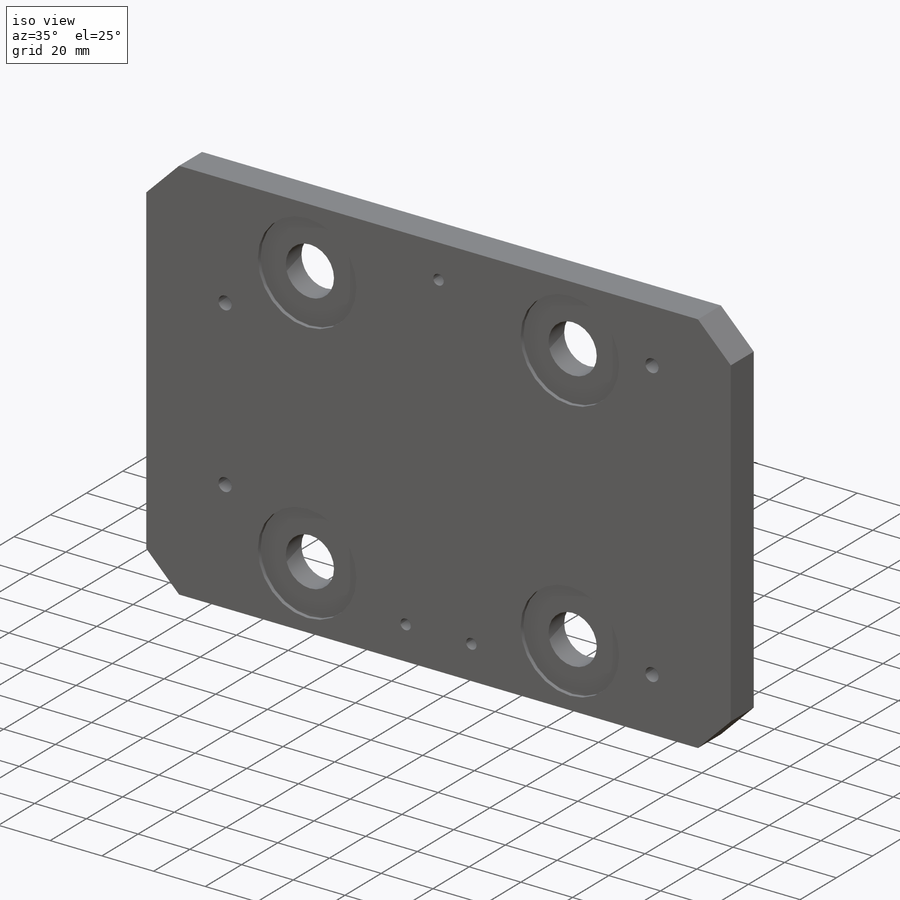
[diagram: iso view]
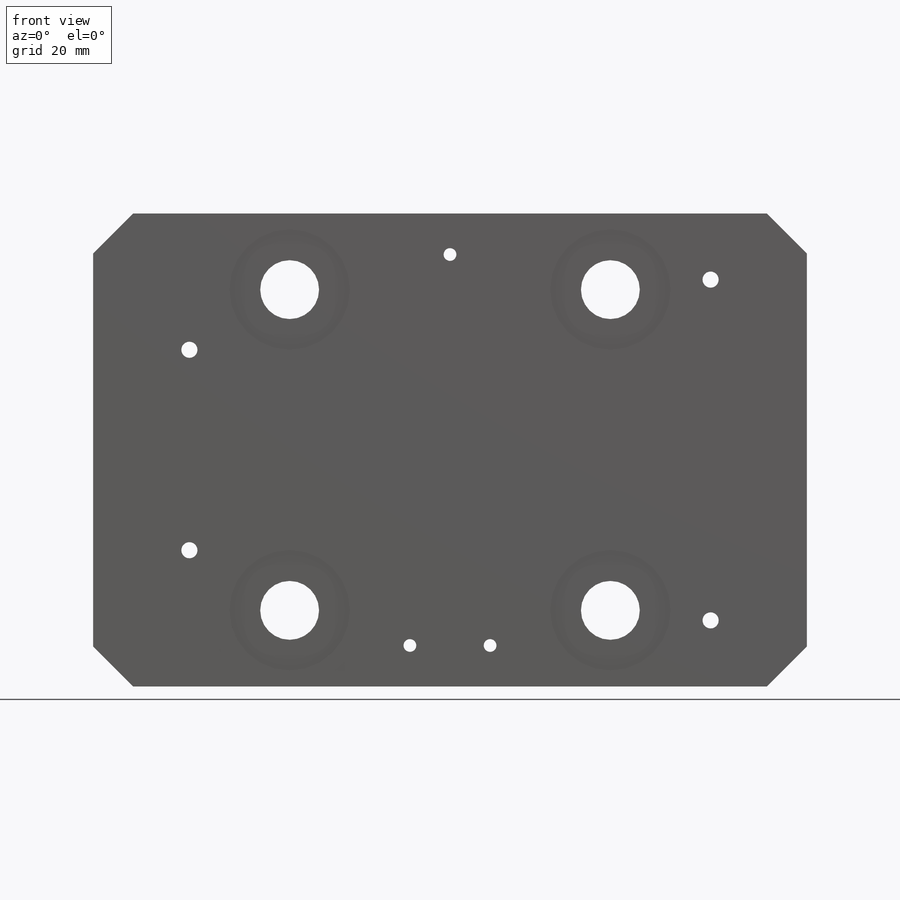
[diagram: front view]
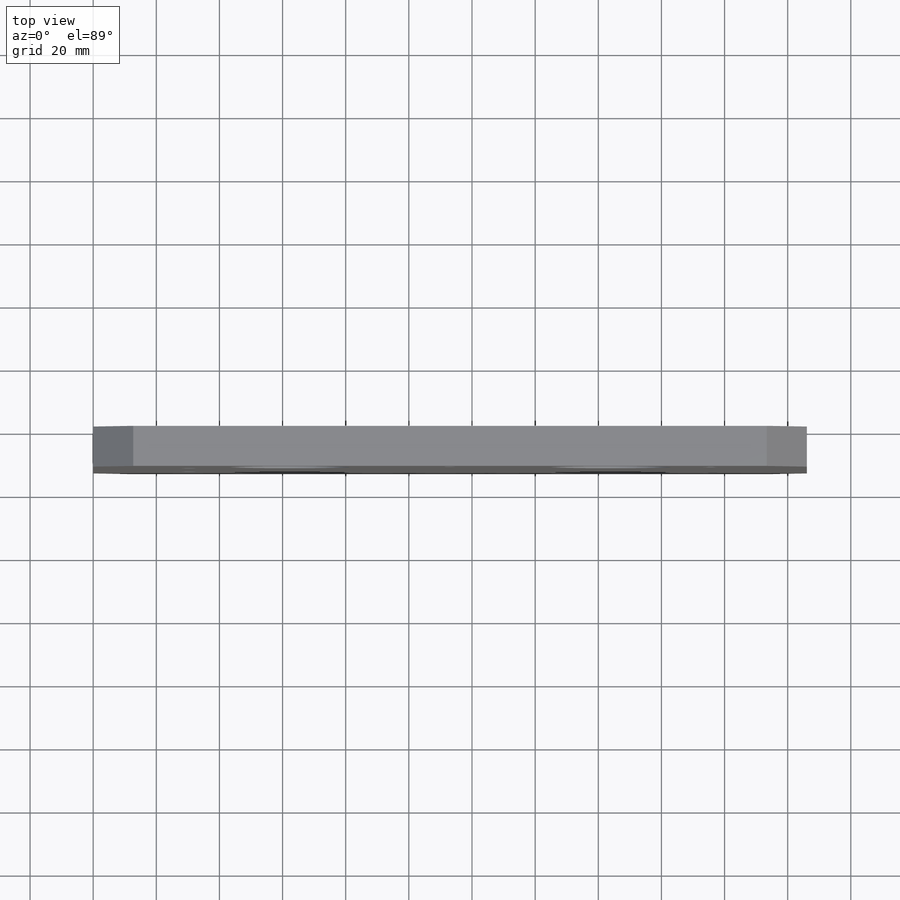
[diagram: top view]
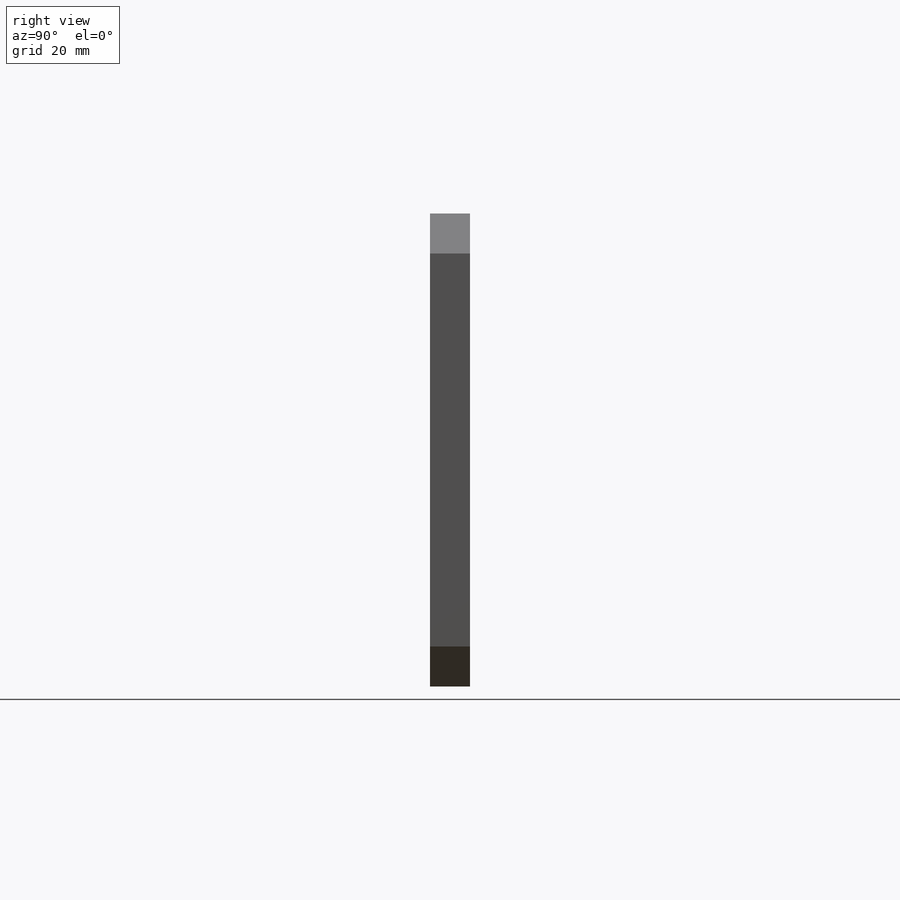
[diagram: right view]
SOLIDWORKS PART (.sldprt)
format: sldprt  version: not decoded by parser v0  size: 401,920 bytes
history: native  units: mm
features: sketch x9, thread x7, hole x3, material x1, plane x1, extrude x1, chamfer x1, cut_extrude x1 (+14 scaffold rows collapsed)
feature tree (38):
  scaffold x14  (default folders/planes/origin — collapsed)
  material  "AISI 304"
  plane  "Plane1"  Offset=16.51mm ID=-1
  sketch  "Sketch3"  dims[D1=226.06mm D2=149.86mm]
  extrude  "Extrude2"  Depth=12.7mm
  sketch  "Sketch20"  dims[D1=38.1mm D2=101.6mm D3=101.6mm]
  hole  "1/4-20 Tapped Hole1"  Diameter=5.1054mm Depth=12.7mm
  sketch  "Sketch13"  dims[D1=82.55mm D2=82.55mm D3=107.95mm D4=63.5mm]
  sketch  "Sketch12"  dims[hole-wizard template sketch: 60 standard entries collapsed; hole parameters kept: c18.Thru Tap Drill Depth=12.7mm]
  thread  "Hole Thread5"  Diameter=6.35mm  [1 undecoded]
  thread  "Hole Thread6"  Diameter=6.35mm  [1 undecoded]
  thread  "Hole Thread7"  Diameter=6.35mm  [1 undecoded]
  thread  "Hole Thread8"  Diameter=6.35mm  [1 undecoded]
  hole  "CBORE for 5/8 Socket Head Cap Screw1"  Diameter=18.6436mm Depth=12.7mm
  sketch  "3DSketch6"  dims[D1=101.6mm D2=101.6mm]
  sketch  "Sketch14"  dims[hole-wizard template sketch: 41 standard entries collapsed; hole parameters kept: c12.Thru Hole Dia.=18.6436mm c12.Thru Hole Depth=12.7mm c12.C'Bore Dia.=38.1mm c12.C'Bore Depth=2.54mm]
  sketch  "Sketch15"  dims[c1.D1=63.5mm c1.D2=63.5mm c2.D1=60.325mm c2.D2=12.7mm c2.D3=12.7mm c2.D4=60.325mm c3.D2=12.7mm c3.D3=12.7mm c4.D2=25.4mm c4.D1=61.9252mm c4.D4=61.9252mm]
  hole  "#10-32 Tapped Hole1"  Diameter=4.0386mm Depth=12.7mm
  sketch  "Sketch17"  dims[D1=25.4mm]
  sketch  "Sketch18"  dims[hole-wizard template sketch: 60 standard entries collapsed; hole parameters kept: c18.Thru Tap Drill Depth=12.7mm]
  thread  "Hole Thread9"  Diameter=4.826mm  [1 undecoded]
  thread  "Hole Thread10"  Diameter=4.826mm  [1 undecoded]
  thread  "Hole Thread11"  Diameter=4.826mm  [1 undecoded]
  chamfer  "Chamfer1"  Distance=12.7mm Angle=45deg
  cut_extrude  "Cut-Extrude5"  Depth=1.524mm
decode coverage: 22 of 22 modeling features carry decoded parameters
note: ~ marks probable driven/reference dimensions
note: 7 parameter values undecoded
note: suppression state not decoded; provenance and decode notes live in map.json
